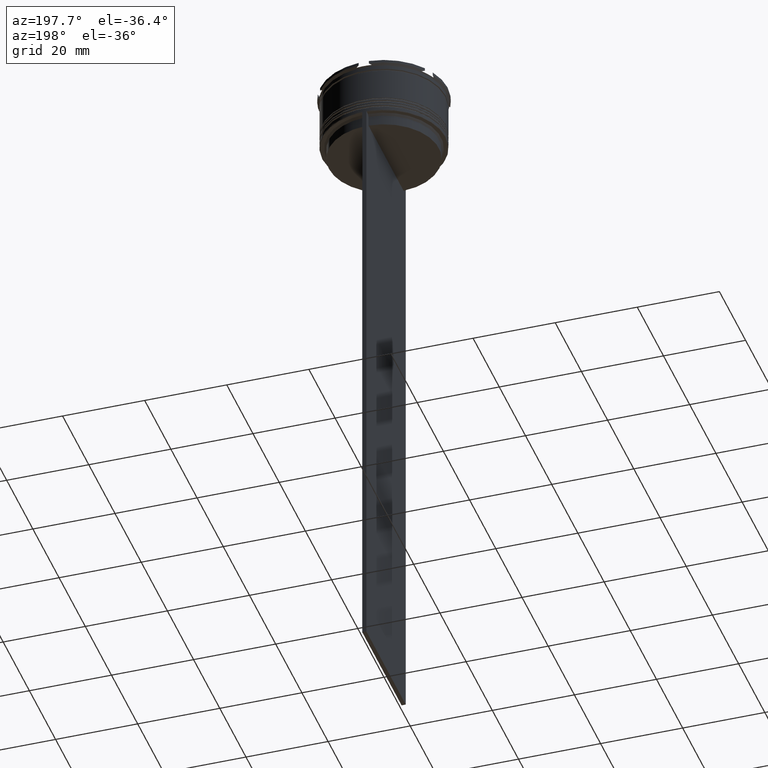
[diagram: clean part render]
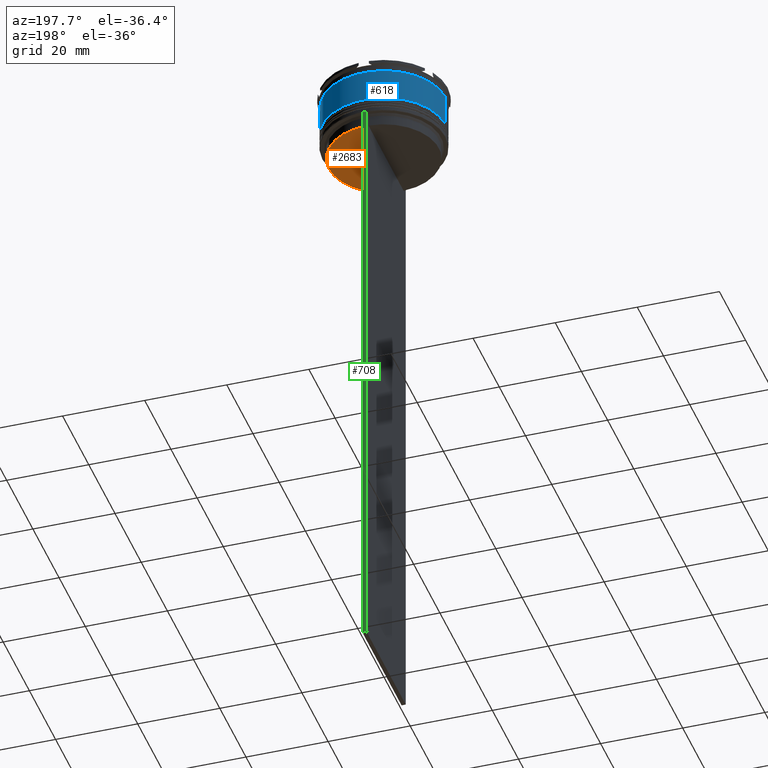
[diagram: same view with three faces highlighted in distinct colors, each labeled with its STEP entity id]
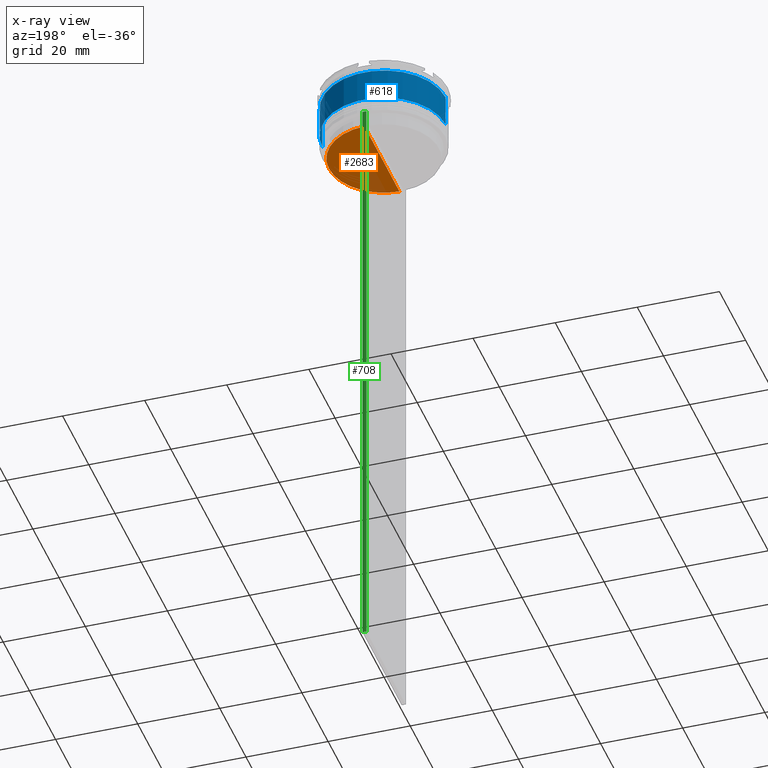
[diagram: x-ray of the same camera — body ghosted, the three highlighted faces saturated]
A machine part, auxiliary view with three faces highlighted in distinct colors.
The next image is the same camera in x-ray (body ghosted, the three faces saturated) — at least one of them is partly hidden behind the body in this view.
Their STEP definitions:

[orange] entity #2683 — the highlighted planar face has unit normal (0, -0, 1).
#94 = CARTESIAN_POINT ( 'NONE',  ( 13.40000000000000391, 0.000000000000000000, -17.00000000000000000 ) ) ;
#377 = CIRCLE ( 'NONE', #788, 13.40000000000000391 ) ;
#439 = PLANE ( 'NONE',  #1219 ) ;
#452 = DIRECTION ( 'NONE',  ( 1.000000000000000000, 0.000000000000000000, 0.000000000000000000 ) ) ;
#510 = CARTESIAN_POINT ( 'NONE',  ( 0.000000000000000000, 0.000000000000000000, -17.00000000000000000 ) ) ;
#630 = DIRECTION ( 'NONE',  ( 0.000000000000000000, -0.000000000000000000, 1.000000000000000000 ) ) ;
#734 = CARTESIAN_POINT ( 'NONE',  ( 0.5000000000000001110, 13.39066839257847086, -17.00000000000000000 ) ) ;
#777 = ORIENTED_EDGE ( 'NONE', *, *, #2770, .F. ) ;
#788 = AXIS2_PLACEMENT_3D ( 'NONE', #510, #2018, #452 ) ;
#903 = EDGE_CURVE ( 'NONE', #2021, #2696, #2674, .T. ) ;
#907 = FACE_OUTER_BOUND ( 'NONE', #1033, .T. ) ;
#1033 = EDGE_LOOP ( 'NONE', ( #2253, #2352, #777 ) ) ;
#1219 = AXIS2_PLACEMENT_3D ( 'NONE', #2167, #630, #2016 ) ;
#1428 = CARTESIAN_POINT ( 'NONE',  ( 0.000000000000000000, 0.000000000000000000, -17.00000000000000000 ) ) ;
#1491 = VECTOR ( 'NONE', #2687, 1000.000000000000000 ) ;
#1601 = CIRCLE ( 'NONE', #2288, 13.40000000000000391 ) ;
#1772 = CARTESIAN_POINT ( 'NONE',  ( 0.5000000000000001110, 13.40000000000000391, -17.00000000000000000 ) ) ;
#1888 = DIRECTION ( 'NONE',  ( -0.000000000000000000, -0.000000000000000000, 1.000000000000000000 ) ) ;
#1918 = EDGE_CURVE ( 'NONE', #2389, #2021, #377, .T. ) ;
#2016 = DIRECTION ( 'NONE',  ( 1.000000000000000000, 0.000000000000000000, 0.000000000000000000 ) ) ;
#2018 = DIRECTION ( 'NONE',  ( -0.000000000000000000, -0.000000000000000000, 1.000000000000000000 ) ) ;
#2021 = VERTEX_POINT ( 'NONE', #734 ) ;
#2167 = CARTESIAN_POINT ( 'NONE',  ( 0.000000000000000000, 13.40000000000000391, -17.00000000000000000 ) ) ;
#2253 = ORIENTED_EDGE ( 'NONE', *, *, #903, .F. ) ;
#2288 = AXIS2_PLACEMENT_3D ( 'NONE', #1428, #1888, #2736 ) ;
#2352 = ORIENTED_EDGE ( 'NONE', *, *, #1918, .F. ) ;
#2389 = VERTEX_POINT ( 'NONE', #94 ) ;
#2674 = LINE ( 'NONE', #1772, #1491 ) ;
#2683 = ADVANCED_FACE ( 'NONE', ( #907 ), #439, .F. ) ;
#2686 = CARTESIAN_POINT ( 'NONE',  ( 0.5000000000000001110, -13.39066839257847086, -17.00000000000000000 ) ) ;
#2687 = DIRECTION ( 'NONE',  ( 0.000000000000000000, -1.000000000000000000, 0.000000000000000000 ) ) ;
#2696 = VERTEX_POINT ( 'NONE', #2686 ) ;
#2736 = DIRECTION ( 'NONE',  ( 1.000000000000000000, 0.000000000000000000, 0.000000000000000000 ) ) ;
#2770 = EDGE_CURVE ( 'NONE', #2696, #2389, #1601, .T. ) ;

[blue] entity #618 — the highlighted cylindrical surface (partial cylindrical patch) has radius 15 mm, axis along (-0, -0, 1).
#10 = VECTOR ( 'NONE', #1732, 1000.000000000000000 ) ;
#84 = CYLINDRICAL_SURFACE ( 'NONE', #134, 15.00000000000000000 ) ;
#125 = VERTEX_POINT ( 'NONE', #1624 ) ;
#134 = AXIS2_PLACEMENT_3D ( 'NONE', #2308, #1861, #2749 ) ;
#485 = DIRECTION ( 'NONE',  ( -0.000000000000000000, -0.000000000000000000, 1.000000000000000000 ) ) ;
#573 = ORIENTED_EDGE ( 'NONE', *, *, #885, .F. ) ;
#618 = ADVANCED_FACE ( 'NONE', ( #1194 ), #84, .T. ) ;
#707 = CARTESIAN_POINT ( 'NONE',  ( 14.99999999999999822, 0.000000000000000000, -2.699999999999999734 ) ) ;
#869 = EDGE_LOOP ( 'NONE', ( #1785, #2368, #573, #1270 ) ) ;
#885 = EDGE_CURVE ( 'NONE', #1935, #125, #2047, .T. ) ;
#923 = CARTESIAN_POINT ( 'NONE',  ( 15.00000000000000000, 0.000000000000000000, 0.000000000000000000 ) ) ;
#994 = DIRECTION ( 'NONE',  ( 1.000000000000000000, 0.000000000000000000, 0.000000000000000000 ) ) ;
#1028 = AXIS2_PLACEMENT_3D ( 'NONE', #2763, #2753, #994 ) ;
#1132 = CIRCLE ( 'NONE', #1028, 15.00000000000000178 ) ;
#1163 = DIRECTION ( 'NONE',  ( 1.000000000000000000, 0.000000000000000000, 0.000000000000000000 ) ) ;
#1194 = FACE_OUTER_BOUND ( 'NONE', #869, .T. ) ;
#1264 = LINE ( 'NONE', #2601, #10 ) ;
#1270 = ORIENTED_EDGE ( 'NONE', *, *, #2356, .F. ) ;
#1425 = DIRECTION ( 'NONE',  ( -0.000000000000000000, -0.000000000000000000, 1.000000000000000000 ) ) ;
#1536 = AXIS2_PLACEMENT_3D ( 'NONE', #2490, #485, #1163 ) ;
#1624 = CARTESIAN_POINT ( 'NONE',  ( -14.99999999999999822, 1.836970198721029194E-15, -2.699999999999999734 ) ) ;
#1732 = DIRECTION ( 'NONE',  ( -0.000000000000000000, -0.000000000000000000, 1.000000000000000000 ) ) ;
#1782 = CARTESIAN_POINT ( 'NONE',  ( -15.00000000000000355, 1.836970198721029983E-15, -10.50000000000000178 ) ) ;
#1785 = ORIENTED_EDGE ( 'NONE', *, *, #2805, .T. ) ;
#1807 = VERTEX_POINT ( 'NONE', #1782 ) ;
#1861 = DIRECTION ( 'NONE',  ( -0.000000000000000000, -0.000000000000000000, 1.000000000000000000 ) ) ;
#1935 = VERTEX_POINT ( 'NONE', #707 ) ;
#2047 = CIRCLE ( 'NONE', #1536, 14.99999999999999822 ) ;
#2090 = CARTESIAN_POINT ( 'NONE',  ( 15.00000000000000178, 0.000000000000000000, -10.50000000000000178 ) ) ;
#2158 = EDGE_CURVE ( 'NONE', #1807, #125, #1264, .T. ) ;
#2306 = LINE ( 'NONE', #923, #2426 ) ;
#2308 = CARTESIAN_POINT ( 'NONE',  ( 0.000000000000000000, 0.000000000000000000, 0.000000000000000000 ) ) ;
#2356 = EDGE_CURVE ( 'NONE', #2824, #1935, #2306, .T. ) ;
#2368 = ORIENTED_EDGE ( 'NONE', *, *, #2158, .T. ) ;
#2426 = VECTOR ( 'NONE', #1425, 1000.000000000000000 ) ;
#2490 = CARTESIAN_POINT ( 'NONE',  ( 0.000000000000000000, 0.000000000000000000, -2.699999999999999734 ) ) ;
#2601 = CARTESIAN_POINT ( 'NONE',  ( -15.00000000000000000, 1.836970198721029589E-15, 0.000000000000000000 ) ) ;
#2749 = DIRECTION ( 'NONE',  ( 1.000000000000000000, 0.000000000000000000, 0.000000000000000000 ) ) ;
#2753 = DIRECTION ( 'NONE',  ( -0.000000000000000000, -0.000000000000000000, 1.000000000000000000 ) ) ;
#2763 = CARTESIAN_POINT ( 'NONE',  ( 0.000000000000000000, 0.000000000000000000, -10.50000000000000178 ) ) ;
#2805 = EDGE_CURVE ( 'NONE', #2824, #1807, #1132, .T. ) ;
#2824 = VERTEX_POINT ( 'NONE', #2090 ) ;

[green] entity #708 — the highlighted planar face has unit normal (0, -1, -0).
#39 = CARTESIAN_POINT ( 'NONE',  ( -0.4999999999999998890, 14.99999999999999645, 16.01666203960726165 ) ) ;
#44 = CARTESIAN_POINT ( 'NONE',  ( 0.5000000000000001110, 14.99999999999999645, -14.00000000000000178 ) ) ;
#49 = VERTEX_POINT ( 'NONE', #2684 ) ;
#206 = VERTEX_POINT ( 'NONE', #522 ) ;
#211 = CARTESIAN_POINT ( 'NONE',  ( 0.5000000000000001110, 14.99999999999999645, -163.9999999999999716 ) ) ;
#336 = ORIENTED_EDGE ( 'NONE', *, *, #595, .T. ) ;
#424 = ORIENTED_EDGE ( 'NONE', *, *, #2395, .F. ) ;
#522 = CARTESIAN_POINT ( 'NONE',  ( 0.5000000000000001110, 14.99999999999999645, -14.00000000000000178 ) ) ;
#595 = EDGE_CURVE ( 'NONE', #206, #1196, #2762, .T. ) ;
#656 = LINE ( 'NONE', #2243, #2189 ) ;
#706 = VECTOR ( 'NONE', #928, 1000.000000000000000 ) ;
#708 = ADVANCED_FACE ( 'NONE', ( #2602 ), #1467, .F. ) ;
#928 = DIRECTION ( 'NONE',  ( 1.000000000000000000, 0.000000000000000000, 0.000000000000000000 ) ) ;
#1035 = CARTESIAN_POINT ( 'NONE',  ( -0.4999999999999998890, 14.99999999999999645, -163.9999999999999716 ) ) ;
#1145 = ORIENTED_EDGE ( 'NONE', *, *, #1759, .T. ) ;
#1196 = VERTEX_POINT ( 'NONE', #211 ) ;
#1201 = LINE ( 'NONE', #39, #1964 ) ;
#1383 = DIRECTION ( 'NONE',  ( 0.000000000000000000, 0.000000000000000000, -1.000000000000000000 ) ) ;
#1417 = DIRECTION ( 'NONE',  ( 0.000000000000000000, 0.000000000000000000, -1.000000000000000000 ) ) ;
#1467 = PLANE ( 'NONE',  #2179 ) ;
#1630 = CARTESIAN_POINT ( 'NONE',  ( 0.5000000000000001110, 14.99999999999999645, 16.01666203960726165 ) ) ;
#1686 = DIRECTION ( 'NONE',  ( 0.000000000000000000, -1.000000000000000000, -0.000000000000000000 ) ) ;
#1744 = EDGE_CURVE ( 'NONE', #49, #206, #2884, .T. ) ;
#1759 = EDGE_CURVE ( 'NONE', #1196, #2518, #656, .T. ) ;
#1917 = CARTESIAN_POINT ( 'NONE',  ( 0.5000000000000001110, 14.99999999999999645, 16.01666203960726165 ) ) ;
#1964 = VECTOR ( 'NONE', #1383, 1000.000000000000000 ) ;
#2179 = AXIS2_PLACEMENT_3D ( 'NONE', #1917, #1686, #2804 ) ;
#2189 = VECTOR ( 'NONE', #2481, 1000.000000000000000 ) ;
#2243 = CARTESIAN_POINT ( 'NONE',  ( 0.5000000000000001110, 14.99999999999999645, -163.9999999999999716 ) ) ;
#2363 = EDGE_LOOP ( 'NONE', ( #424, #2413, #336, #1145 ) ) ;
#2395 = EDGE_CURVE ( 'NONE', #49, #2518, #1201, .T. ) ;
#2413 = ORIENTED_EDGE ( 'NONE', *, *, #1744, .T. ) ;
#2481 = DIRECTION ( 'NONE',  ( -1.000000000000000000, 0.000000000000000000, 0.000000000000000000 ) ) ;
#2518 = VERTEX_POINT ( 'NONE', #1035 ) ;
#2602 = FACE_OUTER_BOUND ( 'NONE', #2363, .T. ) ;
#2684 = CARTESIAN_POINT ( 'NONE',  ( -0.4999999999999998890, 14.99999999999999645, -14.00000000000000178 ) ) ;
#2745 = VECTOR ( 'NONE', #1417, 1000.000000000000000 ) ;
#2762 = LINE ( 'NONE', #1630, #2745 ) ;
#2804 = DIRECTION ( 'NONE',  ( 0.000000000000000000, 0.000000000000000000, -1.000000000000000000 ) ) ;
#2884 = LINE ( 'NONE', #44, #706 ) ;